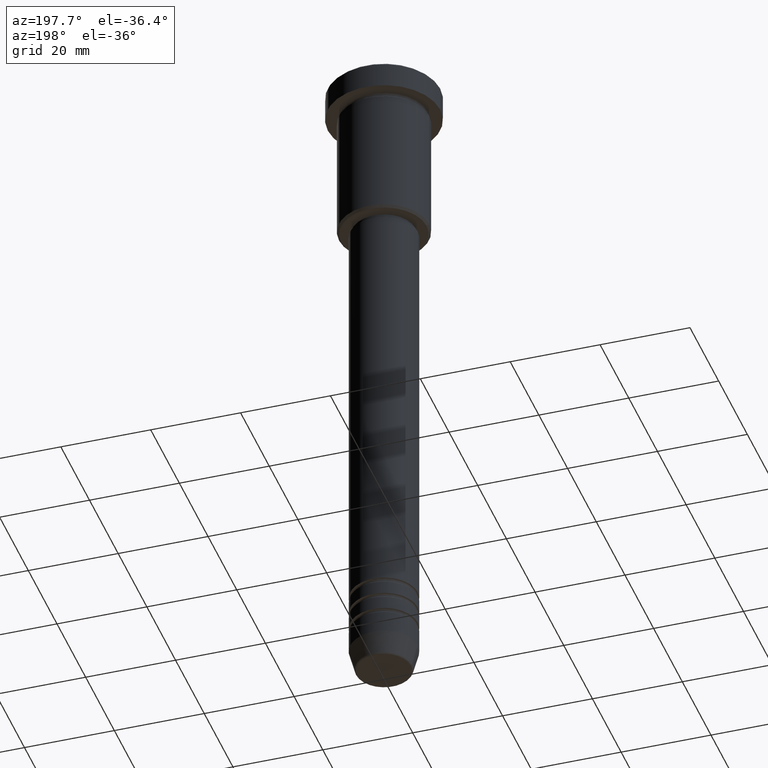
[diagram: clean part render]
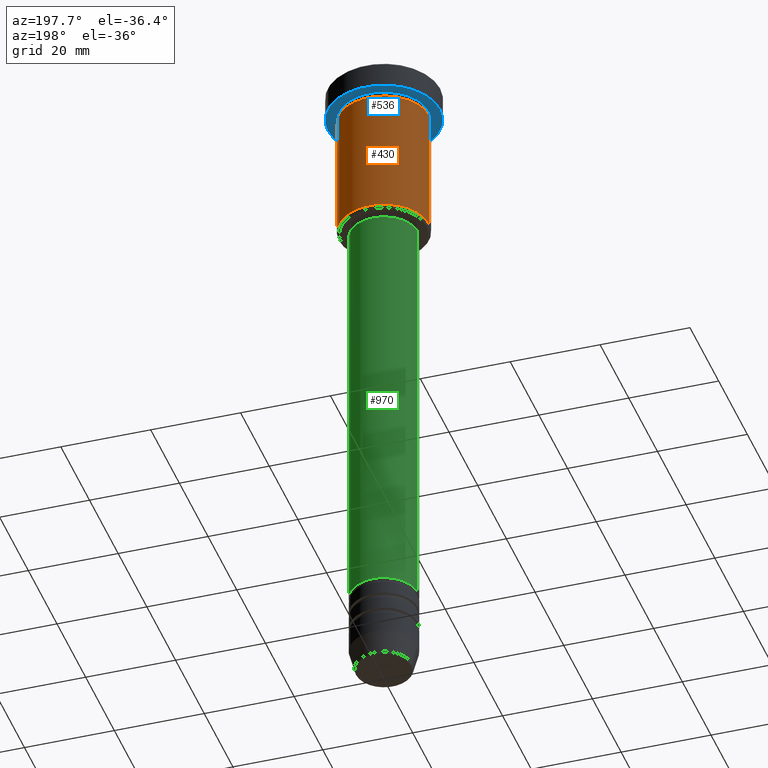
[diagram: same view with three faces highlighted in distinct colors, each labeled with its STEP entity id]
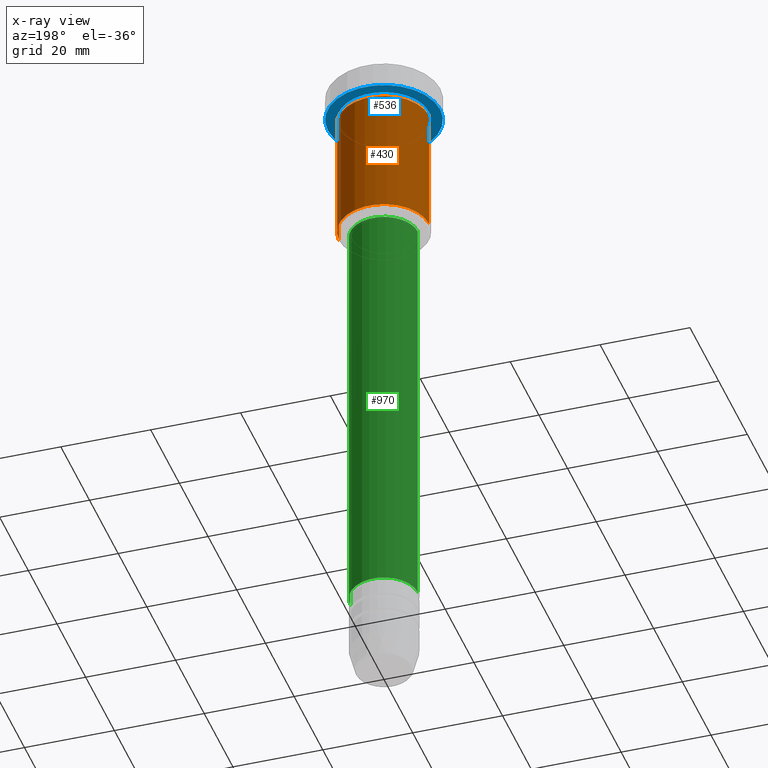
[diagram: x-ray of the same camera — body ghosted, the three highlighted faces saturated]
A machine part, auxiliary view with three faces highlighted in distinct colors.
The next image is the same camera in x-ray (body ghosted, the three faces saturated) — at least one of them is partly hidden behind the body in this view.
Their STEP definitions:

[orange] entity #430 — the highlighted cylindrical surface (partial cylindrical patch) has radius 10 mm, axis along (-0, -0, 1).
#8 = DIRECTION ( 'NONE',  ( 1.000000000000000000, 0.000000000000000000, 0.000000000000000000 ) ) ;
#19 = EDGE_CURVE ( 'NONE', #722, #63, #69, .T. ) ;
#21 = CARTESIAN_POINT ( 'NONE',  ( -10.00000000000000000, 1.224646799147353256E-15, 0.000000000000000000 ) ) ;
#63 = VERTEX_POINT ( 'NONE', #265 ) ;
#67 = CARTESIAN_POINT ( 'NONE',  ( 0.000000000000000000, 0.000000000000000000, 0.000000000000000000 ) ) ;
#69 = LINE ( 'NONE', #798, #264 ) ;
#74 = ORIENTED_EDGE ( 'NONE', *, *, #134, .T. ) ;
#101 = CARTESIAN_POINT ( 'NONE',  ( 0.000000000000000000, 0.000000000000000000, -6.999999999999996447 ) ) ;
#114 = CARTESIAN_POINT ( 'NONE',  ( -10.00000000000000000, 1.224646799147353256E-15, -35.49999999999999289 ) ) ;
#134 = EDGE_CURVE ( 'NONE', #722, #151, #1157, .T. ) ;
#151 = VERTEX_POINT ( 'NONE', #114 ) ;
#155 = FACE_OUTER_BOUND ( 'NONE', #316, .T. ) ;
#198 = AXIS2_PLACEMENT_3D ( 'NONE', #101, #449, #8 ) ;
#239 = ORIENTED_EDGE ( 'NONE', *, *, #19, .F. ) ;
#257 = DIRECTION ( 'NONE',  ( -0.000000000000000000, -0.000000000000000000, 1.000000000000000000 ) ) ;
#264 = VECTOR ( 'NONE', #257, 1000.000000000000000 ) ;
#265 = CARTESIAN_POINT ( 'NONE',  ( 10.00000000000000000, 0.000000000000000000, -6.999999999999996447 ) ) ;
#316 = EDGE_LOOP ( 'NONE', ( #74, #959, #581, #239 ) ) ;
#326 = VECTOR ( 'NONE', #732, 1000.000000000000000 ) ;
#365 = LINE ( 'NONE', #21, #326 ) ;
#417 = DIRECTION ( 'NONE',  ( -0.000000000000000000, -0.000000000000000000, 1.000000000000000000 ) ) ;
#430 = ADVANCED_FACE ( 'NONE', ( #155 ), #504, .T. ) ;
#449 = DIRECTION ( 'NONE',  ( -0.000000000000000000, -0.000000000000000000, 1.000000000000000000 ) ) ;
#504 = CYLINDRICAL_SURFACE ( 'NONE', #910, 10.00000000000000000 ) ;
#574 = CARTESIAN_POINT ( 'NONE',  ( -10.00000000000000000, 1.224646799147353256E-15, -6.999999999999996447 ) ) ;
#581 = ORIENTED_EDGE ( 'NONE', *, *, #979, .F. ) ;
#627 = EDGE_CURVE ( 'NONE', #151, #1154, #365, .T. ) ;
#722 = VERTEX_POINT ( 'NONE', #856 ) ;
#732 = DIRECTION ( 'NONE',  ( -0.000000000000000000, -0.000000000000000000, 1.000000000000000000 ) ) ;
#795 = DIRECTION ( 'NONE',  ( 1.000000000000000000, 0.000000000000000000, 0.000000000000000000 ) ) ;
#798 = CARTESIAN_POINT ( 'NONE',  ( 10.00000000000000000, 0.000000000000000000, 0.000000000000000000 ) ) ;
#832 = DIRECTION ( 'NONE',  ( -1.000000000000000000, 0.000000000000000000, 0.000000000000000000 ) ) ;
#837 = DIRECTION ( 'NONE',  ( -0.000000000000000000, -0.000000000000000000, 1.000000000000000000 ) ) ;
#856 = CARTESIAN_POINT ( 'NONE',  ( 10.00000000000000000, 0.000000000000000000, -35.49999999999999289 ) ) ;
#910 = AXIS2_PLACEMENT_3D ( 'NONE', #67, #417, #795 ) ;
#911 = CIRCLE ( 'NONE', #198, 10.00000000000000000 ) ;
#922 = CARTESIAN_POINT ( 'NONE',  ( 0.000000000000000000, 0.000000000000000000, -35.49999999999999289 ) ) ;
#959 = ORIENTED_EDGE ( 'NONE', *, *, #627, .T. ) ;
#979 = EDGE_CURVE ( 'NONE', #63, #1154, #911, .T. ) ;
#1020 = AXIS2_PLACEMENT_3D ( 'NONE', #922, #837, #832 ) ;
#1154 = VERTEX_POINT ( 'NONE', #574 ) ;
#1157 = CIRCLE ( 'NONE', #1020, 10.00000000000000000 ) ;

[blue] entity #536 — the highlighted planar face has unit normal (0, 0, -1).
#3 = EDGE_CURVE ( 'NONE', #1071, #895, #66, .T. ) ;
#66 = CIRCLE ( 'NONE', #964, 10.00000000000000000 ) ;
#68 = CIRCLE ( 'NONE', #727, 10.00000000000000000 ) ;
#135 = DIRECTION ( 'NONE',  ( -1.000000000000000000, 0.000000000000000000, -0.000000000000000000 ) ) ;
#152 = DIRECTION ( 'NONE',  ( 0.000000000000000000, 0.000000000000000000, -1.000000000000000000 ) ) ;
#172 = CARTESIAN_POINT ( 'NONE',  ( 0.000000000000000000, 0.000000000000000000, -5.999999999999996447 ) ) ;
#187 = CARTESIAN_POINT ( 'NONE',  ( -10.00000000000000000, 0.000000000000000000, -5.999999999999996447 ) ) ;
#223 = CARTESIAN_POINT ( 'NONE',  ( 0.000000000000000000, 0.000000000000000000, -5.999999999999996447 ) ) ;
#225 = CARTESIAN_POINT ( 'NONE',  ( 0.000000000000000000, 12.50000000000000000, -5.999999999999996447 ) ) ;
#299 = CARTESIAN_POINT ( 'NONE',  ( 0.000000000000000000, 0.000000000000000000, -5.999999999999996447 ) ) ;
#313 = CARTESIAN_POINT ( 'NONE',  ( 10.00000000000000000, 1.224646799147353256E-15, -5.999999999999996447 ) ) ;
#318 = CARTESIAN_POINT ( 'NONE',  ( 0.000000000000000000, 0.000000000000000000, -5.999999999999996447 ) ) ;
#320 = EDGE_CURVE ( 'NONE', #703, #410, #375, .T. ) ;
#330 = ORIENTED_EDGE ( 'NONE', *, *, #3, .T. ) ;
#359 = AXIS2_PLACEMENT_3D ( 'NONE', #223, #1127, #1145 ) ;
#375 = CIRCLE ( 'NONE', #531, 12.50000000000000000 ) ;
#410 = VERTEX_POINT ( 'NONE', #619 ) ;
#434 = DIRECTION ( 'NONE',  ( -1.000000000000000000, 0.000000000000000000, 0.000000000000000000 ) ) ;
#473 = EDGE_LOOP ( 'NONE', ( #484, #330 ) ) ;
#484 = ORIENTED_EDGE ( 'NONE', *, *, #735, .T. ) ;
#528 = ORIENTED_EDGE ( 'NONE', *, *, #320, .F. ) ;
#531 = AXIS2_PLACEMENT_3D ( 'NONE', #299, #784, #1041 ) ;
#536 = ADVANCED_FACE ( 'NONE', ( #686, #673 ), #583, .T. ) ;
#566 = DIRECTION ( 'NONE',  ( -1.000000000000000000, 0.000000000000000000, 0.000000000000000000 ) ) ;
#583 = PLANE ( 'NONE',  #613 ) ;
#613 = AXIS2_PLACEMENT_3D ( 'NONE', #225, #152, #135 ) ;
#619 = CARTESIAN_POINT ( 'NONE',  ( 12.50000000000000000, 0.000000000000000000, -5.999999999999996447 ) ) ;
#673 = FACE_OUTER_BOUND ( 'NONE', #1052, .T. ) ;
#686 = FACE_BOUND ( 'NONE', #473, .T. ) ;
#690 = DIRECTION ( 'NONE',  ( -0.000000000000000000, -0.000000000000000000, 1.000000000000000000 ) ) ;
#703 = VERTEX_POINT ( 'NONE', #867 ) ;
#706 = DIRECTION ( 'NONE',  ( -0.000000000000000000, -0.000000000000000000, 1.000000000000000000 ) ) ;
#727 = AXIS2_PLACEMENT_3D ( 'NONE', #318, #690, #566 ) ;
#735 = EDGE_CURVE ( 'NONE', #895, #1071, #68, .T. ) ;
#784 = DIRECTION ( 'NONE',  ( -0.000000000000000000, -0.000000000000000000, 1.000000000000000000 ) ) ;
#818 = ORIENTED_EDGE ( 'NONE', *, *, #1031, .F. ) ;
#867 = CARTESIAN_POINT ( 'NONE',  ( -12.50000000000000000, 1.530808498934191521E-15, -5.999999999999996447 ) ) ;
#889 = CIRCLE ( 'NONE', #359, 12.50000000000000000 ) ;
#895 = VERTEX_POINT ( 'NONE', #187 ) ;
#964 = AXIS2_PLACEMENT_3D ( 'NONE', #172, #706, #434 ) ;
#1031 = EDGE_CURVE ( 'NONE', #410, #703, #889, .T. ) ;
#1041 = DIRECTION ( 'NONE',  ( 1.000000000000000000, 0.000000000000000000, 0.000000000000000000 ) ) ;
#1052 = EDGE_LOOP ( 'NONE', ( #818, #528 ) ) ;
#1071 = VERTEX_POINT ( 'NONE', #313 ) ;
#1127 = DIRECTION ( 'NONE',  ( -0.000000000000000000, -0.000000000000000000, 1.000000000000000000 ) ) ;
#1145 = DIRECTION ( 'NONE',  ( 1.000000000000000000, 0.000000000000000000, 0.000000000000000000 ) ) ;

[green] entity #970 — the highlighted cylindrical surface (edge-blend (fillet) strip) has radius 7.5 mm, axis along (-0, -0, 1).
#7 = DIRECTION ( 'NONE',  ( 1.000000000000000000, 0.000000000000000000, 0.000000000000000000 ) ) ;
#20 = FACE_OUTER_BOUND ( 'NONE', #338, .T. ) ;
#49 = CIRCLE ( 'NONE', #869, 7.500000000000000888 ) ;
#82 = CARTESIAN_POINT ( 'NONE',  ( -7.500000000000000000, 9.184850993605147944E-16, -37.00000000000000000 ) ) ;
#113 = CARTESIAN_POINT ( 'NONE',  ( 7.500000000000000888, 0.000000000000000000, -131.9999999999998863 ) ) ;
#128 = DIRECTION ( 'NONE',  ( -0.000000000000000000, -0.000000000000000000, 1.000000000000000000 ) ) ;
#140 = EDGE_CURVE ( 'NONE', #1137, #399, #141, .T. ) ;
#141 = CIRCLE ( 'NONE', #709, 7.500000000000000000 ) ;
#213 = AXIS2_PLACEMENT_3D ( 'NONE', #369, #266, #1115 ) ;
#266 = DIRECTION ( 'NONE',  ( -0.000000000000000000, -0.000000000000000000, 1.000000000000000000 ) ) ;
#310 = LINE ( 'NONE', #681, #849 ) ;
#338 = EDGE_LOOP ( 'NONE', ( #380, #697, #951, #523 ) ) ;
#354 = EDGE_CURVE ( 'NONE', #984, #399, #806, .T. ) ;
#369 = CARTESIAN_POINT ( 'NONE',  ( 0.000000000000000000, 0.000000000000000000, 0.000000000000000000 ) ) ;
#380 = ORIENTED_EDGE ( 'NONE', *, *, #543, .T. ) ;
#389 = DIRECTION ( 'NONE',  ( -0.000000000000000000, -0.000000000000000000, 1.000000000000000000 ) ) ;
#399 = VERTEX_POINT ( 'NONE', #82 ) ;
#463 = DIRECTION ( 'NONE',  ( -0.000000000000000000, -0.000000000000000000, 1.000000000000000000 ) ) ;
#523 = ORIENTED_EDGE ( 'NONE', *, *, #561, .F. ) ;
#527 = DIRECTION ( 'NONE',  ( -0.000000000000000000, -0.000000000000000000, 1.000000000000000000 ) ) ;
#543 = EDGE_CURVE ( 'NONE', #654, #984, #49, .T. ) ;
#561 = EDGE_CURVE ( 'NONE', #654, #1137, #310, .T. ) ;
#647 = CYLINDRICAL_SURFACE ( 'NONE', #213, 7.500000000000000000 ) ;
#654 = VERTEX_POINT ( 'NONE', #113 ) ;
#681 = CARTESIAN_POINT ( 'NONE',  ( 7.500000000000000000, 0.000000000000000000, 0.000000000000000000 ) ) ;
#697 = ORIENTED_EDGE ( 'NONE', *, *, #354, .T. ) ;
#709 = AXIS2_PLACEMENT_3D ( 'NONE', #1104, #463, #7 ) ;
#730 = CARTESIAN_POINT ( 'NONE',  ( -7.500000000000001776, 9.184850993605149917E-16, -131.9999999999998863 ) ) ;
#806 = LINE ( 'NONE', #1168, #1099 ) ;
#849 = VECTOR ( 'NONE', #128, 1000.000000000000000 ) ;
#862 = DIRECTION ( 'NONE',  ( 1.000000000000000000, 0.000000000000000000, 0.000000000000000000 ) ) ;
#869 = AXIS2_PLACEMENT_3D ( 'NONE', #1036, #389, #862 ) ;
#951 = ORIENTED_EDGE ( 'NONE', *, *, #140, .F. ) ;
#970 = ADVANCED_FACE ( 'NONE', ( #20 ), #647, .T. ) ;
#984 = VERTEX_POINT ( 'NONE', #730 ) ;
#1029 = CARTESIAN_POINT ( 'NONE',  ( 7.500000000000000000, 0.000000000000000000, -37.00000000000000000 ) ) ;
#1036 = CARTESIAN_POINT ( 'NONE',  ( 0.000000000000000000, 0.000000000000000000, -131.9999999999998863 ) ) ;
#1099 = VECTOR ( 'NONE', #527, 1000.000000000000000 ) ;
#1104 = CARTESIAN_POINT ( 'NONE',  ( 0.000000000000000000, 0.000000000000000000, -37.00000000000000000 ) ) ;
#1115 = DIRECTION ( 'NONE',  ( 1.000000000000000000, 0.000000000000000000, 0.000000000000000000 ) ) ;
#1137 = VERTEX_POINT ( 'NONE', #1029 ) ;
#1168 = CARTESIAN_POINT ( 'NONE',  ( -7.500000000000000000, 9.184850993605147944E-16, 0.000000000000000000 ) ) ;